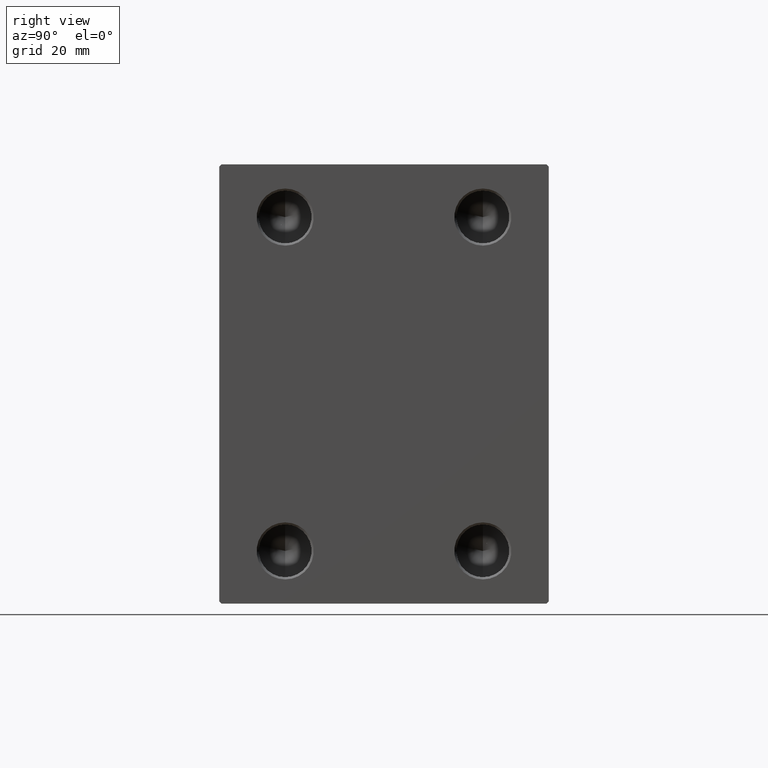
[diagram: clean part render]
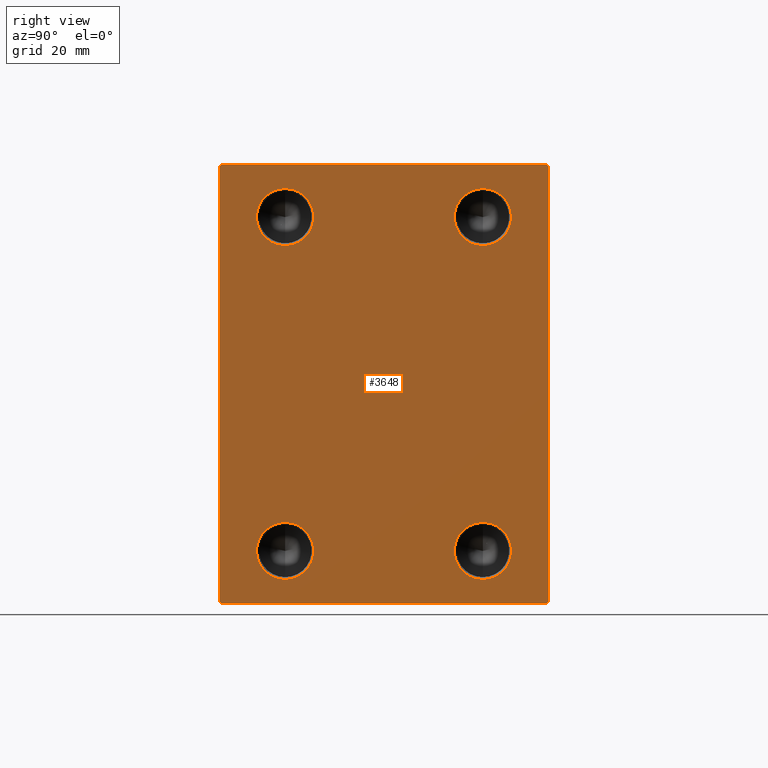
[diagram: same view with one face highlighted and labeled with its STEP entity id]
A machine part, right view. The second image highlights one B-rep face of the part: STEP entity #3648.
In plain terms, the highlighted planar face has unit normal (1, 0, 0).
Its self-contained STEP definition (entity closure, byte-faithful):
#307 = EDGE_LOOP ( 'NONE', ( #15877, #6497, #9703, #30464, #22937, #12420, #9714, #29223 ) ) ;
#690 = VERTEX_POINT ( 'NONE', #28836 ) ;
#1071 = VERTEX_POINT ( 'NONE', #5394 ) ;
#1317 = DIRECTION ( 'NONE',  ( 1.000000000000000000, -0.000000000000000000, -0.000000000000000000 ) ) ;
#1939 = LINE ( 'NONE', #32731, #11286 ) ;
#2055 = DIRECTION ( 'NONE',  ( -0.000000000000000000, 0.7071067811865524577, 0.7071067811865426878 ) ) ;
#2249 = VECTOR ( 'NONE', #32947, 1000.000000000000000 ) ;
#2469 = VERTEX_POINT ( 'NONE', #22868 ) ;
#2587 = CARTESIAN_POINT ( 'NONE',  ( 98.00000000000000000, 37.00000000000001421, -50.00000000000000000 ) ) ;
#2702 = CARTESIAN_POINT ( 'NONE',  ( 98.00000000000000000, 22.50000000000000000, 37.99999999999999289 ) ) ;
#2934 = CARTESIAN_POINT ( 'NONE',  ( 98.00000000000000000, -36.99999999999999289, 49.99999999999998579 ) ) ;
#3648 = ADVANCED_FACE ( 'NONE', ( #26192, #39685, #43273, #16504, #30238 ), #40577, .T. ) ;
#3658 = AXIS2_PLACEMENT_3D ( 'NONE', #28352, #24751, #27905 ) ;
#4021 = CARTESIAN_POINT ( 'NONE',  ( 98.00000000000000000, -22.50000000000000000, 37.99999999999999289 ) ) ;
#4148 = EDGE_CURVE ( 'NONE', #35654, #34875, #30400, .T. ) ;
#4211 = CARTESIAN_POINT ( 'NONE',  ( 98.00000000000000000, -43.50000000000000711, -43.50000000000000711 ) ) ;
#4632 = EDGE_CURVE ( 'NONE', #34875, #35654, #10333, .T. ) ;
#4694 = CARTESIAN_POINT ( 'NONE',  ( 98.00000000000000000, 22.50000000000000000, -38.00000000000000711 ) ) ;
#5303 = VECTOR ( 'NONE', #2055, 1000.000000000000000 ) ;
#5394 = CARTESIAN_POINT ( 'NONE',  ( 98.00000000000000000, 22.50000000000000000, -31.50000000000001421 ) ) ;
#5661 = CARTESIAN_POINT ( 'NONE',  ( 98.00000000000000000, 37.00000000000000711, 50.00000000000000711 ) ) ;
#5731 = CARTESIAN_POINT ( 'NONE',  ( 98.00000000000000000, 0.000000000000000000, 0.000000000000000000 ) ) ;
#5780 = DIRECTION ( 'NONE',  ( 0.000000000000000000, 0.000000000000000000, -1.000000000000000000 ) ) ;
#6497 = ORIENTED_EDGE ( 'NONE', *, *, #9832, .T. ) ;
#6537 = EDGE_CURVE ( 'NONE', #7986, #12142, #15177, .T. ) ;
#7102 = DIRECTION ( 'NONE',  ( 0.000000000000000000, 1.000000000000000000, 0.000000000000000000 ) ) ;
#7498 = CARTESIAN_POINT ( 'NONE',  ( 98.00000000000000000, -22.50000000000000000, 44.49999999999998579 ) ) ;
#7921 = EDGE_CURVE ( 'NONE', #10887, #13625, #27607, .T. ) ;
#7986 = VERTEX_POINT ( 'NONE', #19250 ) ;
#8239 = ORIENTED_EDGE ( 'NONE', *, *, #37955, .F. ) ;
#8242 = EDGE_CURVE ( 'NONE', #13625, #39082, #24182, .T. ) ;
#8542 = ORIENTED_EDGE ( 'NONE', *, *, #13932, .F. ) ;
#9063 = EDGE_LOOP ( 'NONE', ( #8542, #39858 ) ) ;
#9114 = DIRECTION ( 'NONE',  ( 0.000000000000000000, 0.000000000000000000, -1.000000000000000000 ) ) ;
#9244 = CARTESIAN_POINT ( 'NONE',  ( 98.00000000000000000, 43.49999999999974420, -43.50000000000034817 ) ) ;
#9634 = CIRCLE ( 'NONE', #34029, 6.499999999999992006 ) ;
#9703 = ORIENTED_EDGE ( 'NONE', *, *, #14714, .T. ) ;
#9714 = ORIENTED_EDGE ( 'NONE', *, *, #11183, .T. ) ;
#9832 = EDGE_CURVE ( 'NONE', #10464, #690, #43305, .T. ) ;
#9912 = CARTESIAN_POINT ( 'NONE',  ( 98.00000000000000000, 37.50000000000000711, -50.00000000000000000 ) ) ;
#10006 = DIRECTION ( 'NONE',  ( 0.000000000000000000, 0.000000000000000000, -1.000000000000000000 ) ) ;
#10333 = CIRCLE ( 'NONE', #18909, 6.499999999999992006 ) ;
#10464 = VERTEX_POINT ( 'NONE', #2934 ) ;
#10701 = ORIENTED_EDGE ( 'NONE', *, *, #34164, .F. ) ;
#10887 = VERTEX_POINT ( 'NONE', #22791 ) ;
#11183 = EDGE_CURVE ( 'NONE', #31945, #7986, #40714, .T. ) ;
#11286 = VECTOR ( 'NONE', #29366, 1000.000000000000000 ) ;
#11658 = DIRECTION ( 'NONE',  ( 0.000000000000000000, 0.000000000000000000, -1.000000000000000000 ) ) ;
#11823 = CARTESIAN_POINT ( 'NONE',  ( 98.00000000000000000, -37.50000000000000000, 49.99999999999998579 ) ) ;
#12070 = DIRECTION ( 'NONE',  ( 0.000000000000000000, -0.7071067811865525687, -0.7071067811865425767 ) ) ;
#12142 = VERTEX_POINT ( 'NONE', #5661 ) ;
#12420 = ORIENTED_EDGE ( 'NONE', *, *, #26606, .T. ) ;
#12524 = CARTESIAN_POINT ( 'NONE',  ( 98.00000000000000000, -22.50000000000000000, 37.99999999999999289 ) ) ;
#12903 = ORIENTED_EDGE ( 'NONE', *, *, #4148, .F. ) ;
#13228 = VECTOR ( 'NONE', #38596, 999.9999999999998863 ) ;
#13625 = VERTEX_POINT ( 'NONE', #34330 ) ;
#13802 = CARTESIAN_POINT ( 'NONE',  ( 98.00000000000000000, -22.50000000000000000, -38.00000000000000711 ) ) ;
#13858 = AXIS2_PLACEMENT_3D ( 'NONE', #2702, #37774, #16838 ) ;
#13920 = DIRECTION ( 'NONE',  ( 1.000000000000000000, -0.000000000000000000, -0.000000000000000000 ) ) ;
#13932 = EDGE_CURVE ( 'NONE', #1071, #2469, #33807, .T. ) ;
#14714 = EDGE_CURVE ( 'NONE', #690, #10887, #32501, .T. ) ;
#15177 = LINE ( 'NONE', #28469, #13228 ) ;
#15229 = EDGE_LOOP ( 'NONE', ( #29489, #17087 ) ) ;
#15573 = AXIS2_PLACEMENT_3D ( 'NONE', #18143, #17916, #18591 ) ;
#15877 = ORIENTED_EDGE ( 'NONE', *, *, #39800, .T. ) ;
#16504 = FACE_BOUND ( 'NONE', #9063, .T. ) ;
#16838 = DIRECTION ( 'NONE',  ( 0.000000000000000000, 0.000000000000000000, -1.000000000000000000 ) ) ;
#17087 = ORIENTED_EDGE ( 'NONE', *, *, #38695, .F. ) ;
#17916 = DIRECTION ( 'NONE',  ( 1.000000000000000000, -0.000000000000000000, -0.000000000000000000 ) ) ;
#18143 = CARTESIAN_POINT ( 'NONE',  ( 98.00000000000000000, -22.50000000000000000, -38.00000000000000711 ) ) ;
#18214 = CARTESIAN_POINT ( 'NONE',  ( 98.00000000000000000, -22.50000000000000000, -31.50000000000001421 ) ) ;
#18588 = VERTEX_POINT ( 'NONE', #29418 ) ;
#18591 = DIRECTION ( 'NONE',  ( 0.000000000000000000, 0.000000000000000000, -1.000000000000000000 ) ) ;
#18909 = AXIS2_PLACEMENT_3D ( 'NONE', #42104, #34707, #37658 ) ;
#19173 = AXIS2_PLACEMENT_3D ( 'NONE', #4021, #13920, #32861 ) ;
#19250 = CARTESIAN_POINT ( 'NONE',  ( 98.00000000000000000, 37.49999999999999289, 49.50000000000002842 ) ) ;
#19592 = AXIS2_PLACEMENT_3D ( 'NONE', #5731, #22373, #9114 ) ;
#21454 = CARTESIAN_POINT ( 'NONE',  ( 98.00000000000000000, 22.50000000000000000, 44.49999999999998579 ) ) ;
#22175 = CIRCLE ( 'NONE', #42901, 6.499999999999992006 ) ;
#22373 = DIRECTION ( 'NONE',  ( 1.000000000000000000, 0.000000000000000000, 0.000000000000000000 ) ) ;
#22745 = CIRCLE ( 'NONE', #15573, 6.499999999999992006 ) ;
#22791 = CARTESIAN_POINT ( 'NONE',  ( 98.00000000000000000, -37.50000000000000000, -49.49999999999997158 ) ) ;
#22868 = CARTESIAN_POINT ( 'NONE',  ( 98.00000000000000000, 22.50000000000000000, -44.50000000000000000 ) ) ;
#22937 = ORIENTED_EDGE ( 'NONE', *, *, #8242, .T. ) ;
#22956 = VERTEX_POINT ( 'NONE', #41724 ) ;
#23486 = AXIS2_PLACEMENT_3D ( 'NONE', #12524, #36593, #5780 ) ;
#24182 = LINE ( 'NONE', #37919, #26894 ) ;
#24751 = DIRECTION ( 'NONE',  ( 1.000000000000000000, -0.000000000000000000, -0.000000000000000000 ) ) ;
#26072 = EDGE_CURVE ( 'NONE', #2469, #1071, #9634, .T. ) ;
#26184 = VECTOR ( 'NONE', #41314, 1000.000000000000114 ) ;
#26192 = FACE_BOUND ( 'NONE', #43450, .T. ) ;
#26606 = EDGE_CURVE ( 'NONE', #39082, #31945, #40042, .T. ) ;
#26894 = VECTOR ( 'NONE', #7102, 1000.000000000000000 ) ;
#27432 = DIRECTION ( 'NONE',  ( 0.000000000000000000, -1.387778780781445676E-16, 1.000000000000000000 ) ) ;
#27607 = LINE ( 'NONE', #4211, #26184 ) ;
#27845 = EDGE_LOOP ( 'NONE', ( #10701, #8239 ) ) ;
#27905 = DIRECTION ( 'NONE',  ( 0.000000000000000000, 0.000000000000000000, -1.000000000000000000 ) ) ;
#28352 = CARTESIAN_POINT ( 'NONE',  ( 98.00000000000000000, 22.50000000000000000, -38.00000000000000711 ) ) ;
#28469 = CARTESIAN_POINT ( 'NONE',  ( 98.00000000000000000, 43.49999999999974420, 43.50000000000035527 ) ) ;
#28836 = CARTESIAN_POINT ( 'NONE',  ( 98.00000000000000000, -37.50000000000000000, 49.49999999999998579 ) ) ;
#29058 = ORIENTED_EDGE ( 'NONE', *, *, #4632, .F. ) ;
#29110 = VECTOR ( 'NONE', #12070, 999.9999999999998863 ) ;
#29223 = ORIENTED_EDGE ( 'NONE', *, *, #6537, .T. ) ;
#29366 = DIRECTION ( 'NONE',  ( 0.000000000000000000, -1.000000000000000000, -2.775557561562891844E-16 ) ) ;
#29418 = CARTESIAN_POINT ( 'NONE',  ( 98.00000000000000000, -22.50000000000000000, 31.50000000000000000 ) ) ;
#29489 = ORIENTED_EDGE ( 'NONE', *, *, #43950, .F. ) ;
#29908 = VERTEX_POINT ( 'NONE', #18214 ) ;
#30238 = FACE_OUTER_BOUND ( 'NONE', #307, .T. ) ;
#30400 = CIRCLE ( 'NONE', #13858, 6.499999999999992006 ) ;
#30464 = ORIENTED_EDGE ( 'NONE', *, *, #7921, .T. ) ;
#30656 = CIRCLE ( 'NONE', #23486, 6.499999999999992006 ) ;
#31341 = DIRECTION ( 'NONE',  ( 1.000000000000000000, -0.000000000000000000, -0.000000000000000000 ) ) ;
#31385 = CIRCLE ( 'NONE', #19173, 6.499999999999992006 ) ;
#31945 = VERTEX_POINT ( 'NONE', #43597 ) ;
#32501 = LINE ( 'NONE', #11823, #2249 ) ;
#32653 = VERTEX_POINT ( 'NONE', #7498 ) ;
#32731 = CARTESIAN_POINT ( 'NONE',  ( 98.00000000000000000, 37.49999999999999289, 50.00000000000000711 ) ) ;
#32861 = DIRECTION ( 'NONE',  ( 0.000000000000000000, 0.000000000000000000, -1.000000000000000000 ) ) ;
#32947 = DIRECTION ( 'NONE',  ( 0.000000000000000000, 0.000000000000000000, -1.000000000000000000 ) ) ;
#33807 = CIRCLE ( 'NONE', #3658, 6.499999999999992006 ) ;
#34029 = AXIS2_PLACEMENT_3D ( 'NONE', #4694, #1317, #11658 ) ;
#34164 = EDGE_CURVE ( 'NONE', #32653, #18588, #31385, .T. ) ;
#34330 = CARTESIAN_POINT ( 'NONE',  ( 98.00000000000000000, -37.00000000000000000, -50.00000000000000000 ) ) ;
#34331 = VECTOR ( 'NONE', #27432, 1000.000000000000000 ) ;
#34707 = DIRECTION ( 'NONE',  ( 1.000000000000000000, -0.000000000000000000, -0.000000000000000000 ) ) ;
#34875 = VERTEX_POINT ( 'NONE', #41250 ) ;
#35654 = VERTEX_POINT ( 'NONE', #21454 ) ;
#36593 = DIRECTION ( 'NONE',  ( 1.000000000000000000, -0.000000000000000000, -0.000000000000000000 ) ) ;
#37658 = DIRECTION ( 'NONE',  ( 0.000000000000000000, 0.000000000000000000, -1.000000000000000000 ) ) ;
#37774 = DIRECTION ( 'NONE',  ( 1.000000000000000000, -0.000000000000000000, -0.000000000000000000 ) ) ;
#37919 = CARTESIAN_POINT ( 'NONE',  ( 98.00000000000000000, -37.50000000000000000, -50.00000000000000000 ) ) ;
#37955 = EDGE_CURVE ( 'NONE', #18588, #32653, #30656, .T. ) ;
#38596 = DIRECTION ( 'NONE',  ( -0.000000000000000000, -0.7071067811865525687, 0.7071067811865425767 ) ) ;
#38695 = EDGE_CURVE ( 'NONE', #22956, #29908, #22745, .T. ) ;
#39082 = VERTEX_POINT ( 'NONE', #2587 ) ;
#39497 = CARTESIAN_POINT ( 'NONE',  ( 98.00000000000000000, -43.49999999999972999, 43.50000000000034106 ) ) ;
#39685 = FACE_BOUND ( 'NONE', #27845, .T. ) ;
#39800 = EDGE_CURVE ( 'NONE', #12142, #10464, #1939, .T. ) ;
#39858 = ORIENTED_EDGE ( 'NONE', *, *, #26072, .F. ) ;
#40042 = LINE ( 'NONE', #9244, #5303 ) ;
#40577 = PLANE ( 'NONE',  #19592 ) ;
#40714 = LINE ( 'NONE', #9912, #34331 ) ;
#41250 = CARTESIAN_POINT ( 'NONE',  ( 98.00000000000000000, 22.50000000000000000, 31.50000000000000000 ) ) ;
#41314 = DIRECTION ( 'NONE',  ( -0.000000000000000000, 0.7071067811865474617, -0.7071067811865474617 ) ) ;
#41724 = CARTESIAN_POINT ( 'NONE',  ( 98.00000000000000000, -22.50000000000000000, -44.50000000000000000 ) ) ;
#42104 = CARTESIAN_POINT ( 'NONE',  ( 98.00000000000000000, 22.50000000000000000, 37.99999999999999289 ) ) ;
#42901 = AXIS2_PLACEMENT_3D ( 'NONE', #13802, #31341, #10006 ) ;
#43273 = FACE_BOUND ( 'NONE', #15229, .T. ) ;
#43305 = LINE ( 'NONE', #39497, #29110 ) ;
#43450 = EDGE_LOOP ( 'NONE', ( #12903, #29058 ) ) ;
#43597 = CARTESIAN_POINT ( 'NONE',  ( 98.00000000000000000, 37.50000000000000711, -49.50000000000001421 ) ) ;
#43950 = EDGE_CURVE ( 'NONE', #29908, #22956, #22175, .T. ) ;